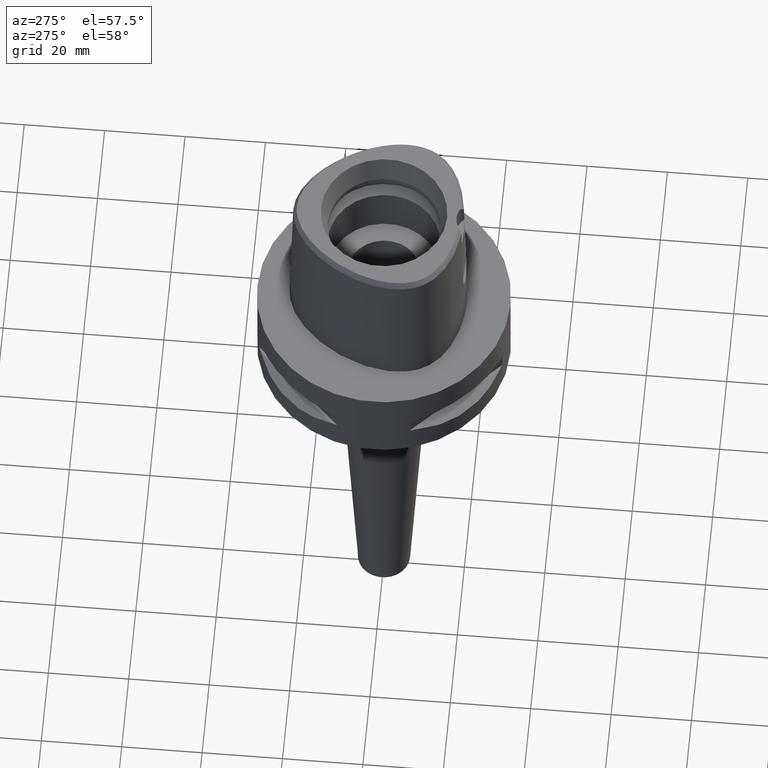
[diagram: clean part render]
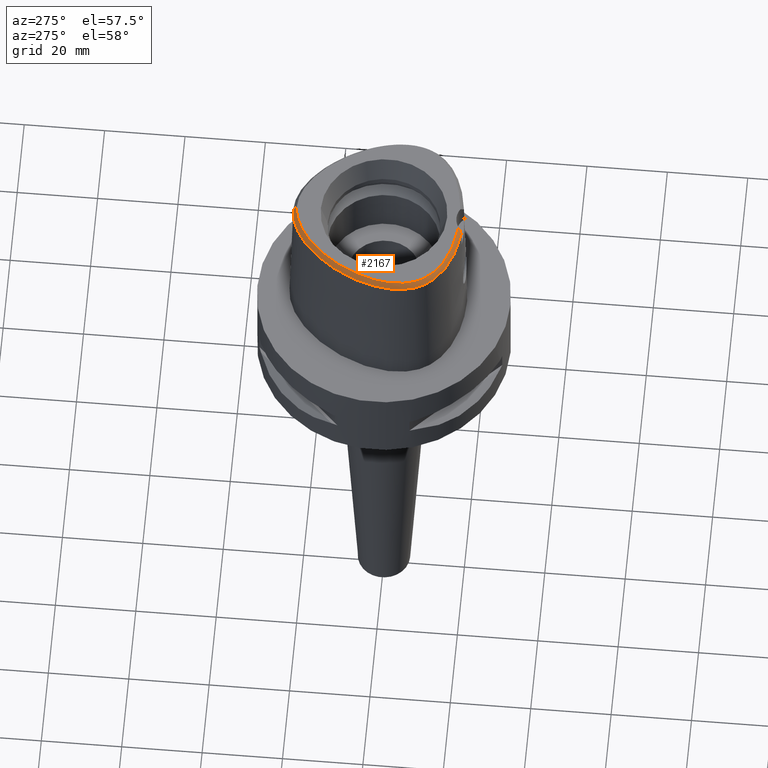
[diagram: same view with one face highlighted and labeled with its STEP entity id]
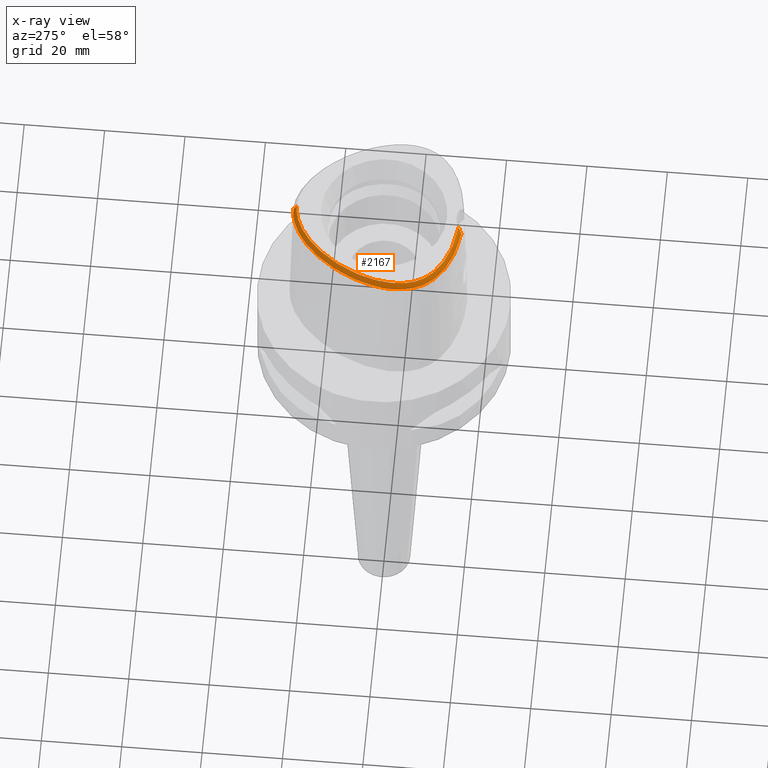
[diagram: x-ray of the same camera — body ghosted, the highlighted face saturated]
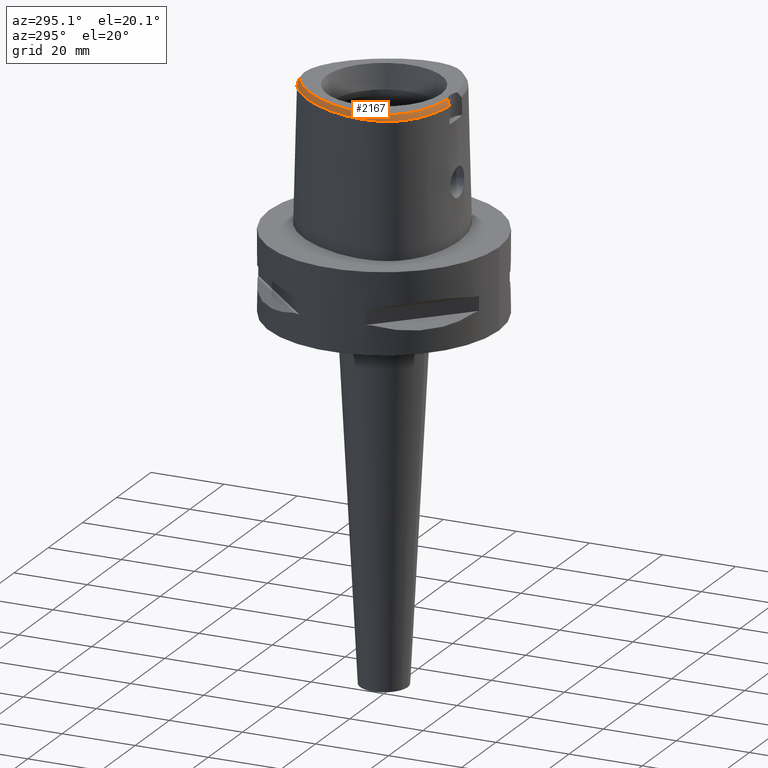
[diagram: same view with one face highlighted and labeled with its STEP entity id]
A machine part, auxiliary view. The second image highlights one B-rep face of the part: STEP entity #2167.
The next image is the same camera in x-ray: the body ghosted, the highlighted face saturated — about 0% of this face is hidden behind the body in this view.
A second angle (auxiliary view) of the same face is appended — the face is thin or edge-on in the first view.
In plain terms, the highlighted face is a freeform B-spline surface patch.
Its self-contained STEP definition (entity closure, byte-faithful):
#34=CARTESIAN_POINT('',(-2.682279906005E0,-1.878035848610E1,3.8E1));
#35=CARTESIAN_POINT('',(-3.586228584062E0,-1.870801032784E1,3.8E1));
#36=CARTESIAN_POINT('',(-5.308205291719E0,-1.849730836982E1,3.8E1));
#37=CARTESIAN_POINT('',(-7.692709063749E0,-1.800633864786E1,3.8E1));
#38=CARTESIAN_POINT('',(-9.712981903672E0,-1.741853963226E1,3.8E1));
#39=CARTESIAN_POINT('',(-1.147525672069E1,-1.675738778527E1,3.8E1));
#40=CARTESIAN_POINT('',(-1.306392596099E1,-1.601239927795E1,3.8E1));
#41=CARTESIAN_POINT('',(-1.449905288696E1,-1.518252759700E1,3.8E1));
#42=CARTESIAN_POINT('',(-1.576050267704E1,-1.428524329159E1,3.8E1));
#43=CARTESIAN_POINT('',(-1.681104160528E1,-1.336911615889E1,3.8E1));
#44=CARTESIAN_POINT('',(-1.768125124672E1,-1.244006173382E1,3.8E1));
#45=CARTESIAN_POINT('',(-1.839385644939E1,-1.150034381849E1,3.8E1));
#46=CARTESIAN_POINT('',(-1.897399263884E1,-1.053874622235E1,3.8E1));
#47=CARTESIAN_POINT('',(-1.946010380121E1,-9.494598084362E0,3.8E1));
#48=CARTESIAN_POINT('',(-1.986244720966E1,-8.325388119061E0,3.8E1));
#49=CARTESIAN_POINT('',(-2.016823293588E1,-7.015151607123E0,3.8E1));
#50=CARTESIAN_POINT('',(-2.036164792737E1,-5.534767052075E0,3.8E1));
#51=CARTESIAN_POINT('',(-2.041577404863E1,-3.903596769674E0,3.8E1));
#52=CARTESIAN_POINT('',(-2.032076525533E1,-2.195753978114E0,3.8E1));
#53=CARTESIAN_POINT('',(-2.007105693777E1,-3.804572632914E-1,3.8E1));
#54=CARTESIAN_POINT('',(-1.964535756017E1,1.582714370326E0,3.8E1));
#55=CARTESIAN_POINT('',(-1.897962183322E1,3.805018530937E0,3.8E1));
#56=CARTESIAN_POINT('',(-1.803159290117E1,6.223282390160E0,3.8E1));
#57=CARTESIAN_POINT('',(-1.684793801476E1,8.639177031310E0,3.8E1));
#58=CARTESIAN_POINT('',(-1.546279333050E1,1.097129757902E1,3.8E1));
#59=CARTESIAN_POINT('',(-1.392323681969E1,1.314528534779E1,3.8E1));
#60=CARTESIAN_POINT('',(-1.228370738747E1,1.509661597866E1,3.8E1));
#61=CARTESIAN_POINT('',(-1.071326479375E1,1.668049699608E1,3.8E1));
#62=CARTESIAN_POINT('',(-9.247586420916E0,1.794799681307E1,3.8E1));
#63=CARTESIAN_POINT('',(-7.805395981351E0,1.901144500772E1,3.8E1));
#64=CARTESIAN_POINT('',(-6.370413206387E0,1.989480475333E1,3.8E1));
#65=CARTESIAN_POINT('',(-4.952404261646E0,2.059889163185E1,3.8E1));
#66=CARTESIAN_POINT('',(-3.600044316983E0,2.111310554259E1,3.8E1));
#67=CARTESIAN_POINT('',(-2.334074181748E0,2.145347675428E1,3.8E1));
#68=CARTESIAN_POINT('',(-1.142370311409E0,2.164594999977E1,3.8E1));
#69=CARTESIAN_POINT('',(-3.750273285144E-1,2.168728795389E1,3.8E1));
#70=CARTESIAN_POINT('',(-3.470663397193E-11,2.168728795390E1,3.8E1));
#183=CARTESIAN_POINT('',(-2.682279906005E0,-1.878035848610E1,3.8E1));
#184=CARTESIAN_POINT('',(-2.795742538136E0,-1.885248275003E1,3.786321482785E1));
#185=CARTESIAN_POINT('',(-3.018597867386E0,-1.900702848679E1,3.757106831959E1));
#186=CARTESIAN_POINT('',(-3.337297352691E0,-1.926897987081E1,3.707984578851E1));
#187=CARTESIAN_POINT('',(-3.539765304928E0,-1.946581615754E1,3.671398622241E1));
#188=CARTESIAN_POINT('',(-3.637738201364E0,-1.956971413237E1,3.652186244848E1));
#193=CARTESIAN_POINT('',(-3.637738201364E0,-1.956971413237E1,3.652186244848E1));
#194=CARTESIAN_POINT('',(-4.537193548749E0,-1.947388025628E1,3.652183529940E1));
#195=CARTESIAN_POINT('',(-6.263949327300E0,-1.921705533810E1,3.652188275785E1));
#196=CARTESIAN_POINT('',(-8.618348519195E0,-1.866798246127E1,3.652185435558E1));
#197=CARTESIAN_POINT('',(-1.060495987192E1,-1.803591213796E1,3.652187576284E1));
#198=CARTESIAN_POINT('',(-1.237067197268E1,-1.732224180535E1,3.652186578478E1));
#199=CARTESIAN_POINT('',(-1.397879260867E1,-1.651413441729E1,3.652186958408E1));
#200=CARTESIAN_POINT('',(-1.542598734321E1,-1.561794019751E1,3.652186521884E1));
#201=CARTESIAN_POINT('',(-1.666737764108E1,-1.467523813454E1,3.652187203924E1));
#202=CARTESIAN_POINT('',(-1.770437627941E1,-1.371528573410E1,3.652187045980E1));
#203=CARTESIAN_POINT('',(-1.857115067472E1,-1.273500788223E1,3.652185855755E1));
#204=CARTESIAN_POINT('',(-1.928442601399E1,-1.174002544139E1,3.652191157147E1));
#205=CARTESIAN_POINT('',(-1.987313581598E1,-1.070549049556E1,3.652186026166E1));
#206=CARTESIAN_POINT('',(-2.036758263126E1,-9.577945777402E0,3.652186701632E1));
#207=CARTESIAN_POINT('',(-2.077211132407E1,-8.321210405634E0,3.652186884943E1));
#208=CARTESIAN_POINT('',(-2.107213951127E1,-6.924739094355E0,3.652186972068E1));
#209=CARTESIAN_POINT('',(-2.125235437077E1,-5.361729912021E0,3.652186572500E1));
#210=CARTESIAN_POINT('',(-2.128712501331E1,-3.639679101091E0,3.652187070383E1));
#211=CARTESIAN_POINT('',(-2.116359888799E1,-1.830362717074E0,3.652186160276E1));
#212=CARTESIAN_POINT('',(-2.087920510343E1,6.599433238334E-2,3.652187692161E1));
#213=CARTESIAN_POINT('',(-2.040877652441E1,2.125525189010E0,3.652185890485E1));
#214=CARTESIAN_POINT('',(-1.967274178354E1,4.473787407312E0,3.652187262732E1));
#215=CARTESIAN_POINT('',(-1.866988253956E1,6.938059692952E0,3.652184673805E1));
#216=CARTESIAN_POINT('',(-1.743962506899E1,9.380231689227E0,3.652185708733E1));
#217=CARTESIAN_POINT('',(-1.600917705974E1,1.173321275189E1,3.652187236541E1));
#218=CARTESIAN_POINT('',(-1.442910686964E1,1.391946669374E1,3.652185993652E1));
#219=CARTESIAN_POINT('',(-1.275797945687E1,1.587321322918E1,3.652186706717E1));
#220=CARTESIAN_POINT('',(-1.114966267944E1,1.746960453198E1,3.652186916644E1));
#221=CARTESIAN_POINT('',(-9.635940589058E0,1.875774927202E1,3.652186756368E1));
#222=CARTESIAN_POINT('',(-8.129315151765E0,1.984871666943E1,3.652186494854E1));
#223=CARTESIAN_POINT('',(-6.628467072847E0,2.075200188891E1,3.652187174651E1));
#224=CARTESIAN_POINT('',(-5.160069573094E0,2.146250909323E1,3.652187196217E1));
#225=CARTESIAN_POINT('',(-3.761043276653E0,2.198030969111E1,3.652186330563E1));
#226=CARTESIAN_POINT('',(-2.442989062411E0,2.232534208061E1,3.652187666147E1));
#227=CARTESIAN_POINT('',(-1.187263974777E0,2.252095610630E1,3.652179140267E1));
#228=CARTESIAN_POINT('',(-3.966403976592E-1,2.256201468012E1,3.652186680743E1));
#229=CARTESIAN_POINT('',(-1.721538145818E-11,2.256201468012E1,
3.652186680744E1));
#234=DIRECTION('',(-1.018375850969E-11,-5.092834681090E-1,8.605988316927E-1));
#235=VECTOR('',#234,1.717563559379E0);
#236=CARTESIAN_POINT('',(-1.721538145818E-11,2.256201468012E1,
3.652186680744E1));
#237=LINE('',#236,#235);
#241=CARTESIAN_POINT('',(-3.637738201364E0,-1.956971413237E1,3.652186244848E1));
#1447=CARTESIAN_POINT('',(-2.682279906007E0,-1.878035848610E1,3.8E1));
#1449=VERTEX_POINT('',#1447);
#1452=VERTEX_POINT('',#70);
#1463=VERTEX_POINT('',#241);
#1464=CARTESIAN_POINT('',(-1.721538145818E-11,2.256201468012E1,
3.652186680744E1));
#1465=VERTEX_POINT('',#1464);
#1911=CARTESIAN_POINT('',(5.884108454669E-1,2.156025804998E1,3.818809545868E1));
#1912=CARTESIAN_POINT('',(6.086991077092E-1,2.192546892924E1,3.756997327730E1));
#1913=CARTESIAN_POINT('',(6.289873699514E-1,2.229067980849E1,3.695185109592E1));
#1914=CARTESIAN_POINT('',(6.492756321937E-1,2.265589068774E1,3.633372891454E1));
#1915=CARTESIAN_POINT('',(3.872006514676E-1,2.157065722628E1,3.818809540356E1));
#1916=CARTESIAN_POINT('',(4.007919193617E-1,2.193625641209E1,3.756997340331E1));
#1917=CARTESIAN_POINT('',(4.143831872557E-1,2.230185559789E1,3.695185140307E1));
#1918=CARTESIAN_POINT('',(4.279744551498E-1,2.266745478369E1,3.633372940283E1));
#1919=CARTESIAN_POINT('',(-2.531722223234E-2,2.158193830770E1,
3.818809536555E1));
#1920=CARTESIAN_POINT('',(-2.611304833073E-2,2.194794412626E1,
3.756997349020E1));
#1921=CARTESIAN_POINT('',(-2.690887442911E-2,2.231394994482E1,
3.695185161486E1));
#1922=CARTESIAN_POINT('',(-2.770470052750E-2,2.267995576337E1,
3.633372973951E1));
#1923=CARTESIAN_POINT('',(-6.429200300095E-1,2.156261856873E1,
3.818809543064E1));
#1924=CARTESIAN_POINT('',(-6.658544550097E-1,2.192792799672E1,
3.756997334139E1));
#1925=CARTESIAN_POINT('',(-6.887888800099E-1,2.229323742471E1,
3.695185125215E1));
#1926=CARTESIAN_POINT('',(-7.117233050101E-1,2.265854685271E1,
3.633372916291E1));
#1927=CARTESIAN_POINT('',(-1.309828249484E0,2.150047141002E1,3.818809547050E1));
#1928=CARTESIAN_POINT('',(-1.355330144038E0,2.186365434379E1,3.756997325028E1));
#1929=CARTESIAN_POINT('',(-1.400832038593E0,2.222683727756E1,3.695185103007E1));
#1930=CARTESIAN_POINT('',(-1.446333933147E0,2.259002021134E1,3.633372880986E1));
#1931=CARTESIAN_POINT('',(-1.996438970932E0,2.139334789722E1,3.818809540467E1));
#1932=CARTESIAN_POINT('',(-2.064089679359E0,2.175305833101E1,3.756997340076E1));
#1933=CARTESIAN_POINT('',(-2.131740387785E0,2.211276876480E1,3.695185139686E1));
#1934=CARTESIAN_POINT('',(-2.199391096211E0,2.247247919859E1,3.633372939295E1));
#1935=CARTESIAN_POINT('',(-2.708548297128E0,2.123757357004E1,3.818809533555E1));
#1936=CARTESIAN_POINT('',(-2.797768876149E0,2.159254220057E1,3.756997355881E1));
#1937=CARTESIAN_POINT('',(-2.886989455171E0,2.194751083110E1,3.695185178208E1));
#1938=CARTESIAN_POINT('',(-2.976210034193E0,2.230247946163E1,3.633373000535E1));
#1939=CARTESIAN_POINT('',(-3.447501903538E0,2.102888486199E1,3.818809535046E1));
#1940=CARTESIAN_POINT('',(-3.557640396634E0,2.137792268828E1,3.756997352471E1));
#1941=CARTESIAN_POINT('',(-3.667778889731E0,2.172696051457E1,3.695185169895E1));
#1942=CARTESIAN_POINT('',(-3.777917382828E0,2.207599834086E1,3.633372987320E1));
#1943=CARTESIAN_POINT('',(-4.214903867223E0,2.076252776782E1,3.818809540601E1));
#1944=CARTESIAN_POINT('',(-4.345219649226E0,2.110453691295E1,3.756997339771E1));
#1945=CARTESIAN_POINT('',(-4.475535431228E0,2.144654605808E1,3.695185138941E1));
#1946=CARTESIAN_POINT('',(-4.605851213231E0,2.178855520322E1,3.633372938111E1));
#1947=CARTESIAN_POINT('',(-5.012668720922E0,2.043282628390E1,3.818809534568E1));
#1948=CARTESIAN_POINT('',(-5.162361549133E0,2.076680041922E1,3.756997353562E1));
#1949=CARTESIAN_POINT('',(-5.312054377345E0,2.110077455455E1,3.695185172556E1));
#1950=CARTESIAN_POINT('',(-5.461747205556E0,2.143474868987E1,3.633372991550E1));
#1951=CARTESIAN_POINT('',(-5.842361250785E0,2.003344382922E1,3.818809532962E1));
#1952=CARTESIAN_POINT('',(-6.010557148468E0,2.035848392826E1,3.756997357237E1));
#1953=CARTESIAN_POINT('',(-6.178753046151E0,2.068352402730E1,3.695185181513E1));
#1954=CARTESIAN_POINT('',(-6.346948943834E0,2.100856412633E1,3.633373005789E1));
#1955=CARTESIAN_POINT('',(-6.702888122816E0,1.955860582634E1,3.818809540239E1));
#1956=CARTESIAN_POINT('',(-6.888709304838E0,1.987389288021E1,3.756997340597E1));
#1957=CARTESIAN_POINT('',(-7.074530486860E0,2.018917993408E1,3.695185140956E1));
#1958=CARTESIAN_POINT('',(-7.260351668881E0,2.050446698795E1,3.633372941314E1));
#1959=CARTESIAN_POINT('',(-7.593592918578E0,1.900176819251E1,3.818809539813E1));
#1960=CARTESIAN_POINT('',(-7.796122208178E0,1.930658240990E1,3.756997341572E1));
#1961=CARTESIAN_POINT('',(-7.998651497779E0,1.961139662730E1,3.695185143331E1));
#1962=CARTESIAN_POINT('',(-8.201180787379E0,1.991621084470E1,3.633372945091E1));
#1963=CARTESIAN_POINT('',(-8.511784475304E0,1.835719399190E1,3.818809546362E1));
#1964=CARTESIAN_POINT('',(-8.730107657638E0,1.865089449007E1,3.756997326601E1));
#1965=CARTESIAN_POINT('',(-8.948430839971E0,1.894459498825E1,3.695185106839E1));
#1966=CARTESIAN_POINT('',(-9.166754022305E0,1.923829548643E1,3.633372887078E1));
#1967=CARTESIAN_POINT('',(-9.453365664655E0,1.761977148632E1,3.818809522651E1));
#1968=CARTESIAN_POINT('',(-9.686593669022E0,1.790177292906E1,3.756997380809E1));
#1969=CARTESIAN_POINT('',(-9.919821673389E0,1.818377437179E1,3.695185238967E1));
#1970=CARTESIAN_POINT('',(-1.015304967776E1,1.846577581453E1,3.633373097124E1));
#1971=CARTESIAN_POINT('',(-1.041439657518E1,1.678421315798E1,3.818809494157E1));
#1972=CARTESIAN_POINT('',(-1.066161084041E1,1.705402910004E1,3.756997445954E1));
#1973=CARTESIAN_POINT('',(-1.090882510563E1,1.732384504210E1,3.695185397752E1));
#1974=CARTESIAN_POINT('',(-1.115603937086E1,1.759366098416E1,3.633373349550E1));
#1975=CARTESIAN_POINT('',(-1.138642050653E1,1.584915603370E1,3.818809496419E1));
#1976=CARTESIAN_POINT('',(-1.164675691222E1,1.610632660804E1,3.756997440780E1));
#1977=CARTESIAN_POINT('',(-1.190709331791E1,1.636349718237E1,3.695185385140E1));
#1978=CARTESIAN_POINT('',(-1.216742972360E1,1.662066775670E1,3.633373329501E1));
#1979=CARTESIAN_POINT('',(-1.235821132425E1,1.481700291251E1,3.818809530240E1));
#1980=CARTESIAN_POINT('',(-1.263082802107E1,1.506111140578E1,3.756997363457E1));
#1981=CARTESIAN_POINT('',(-1.290344471788E1,1.530521989905E1,3.695185196674E1));
#1982=CARTESIAN_POINT('',(-1.317606141470E1,1.554932839232E1,3.633373029891E1));
#1983=CARTESIAN_POINT('',(-1.331790119200E1,1.369250456254E1,3.818809546180E1));
#1984=CARTESIAN_POINT('',(-1.360201164600E1,1.392312874762E1,3.756997327015E1));
#1985=CARTESIAN_POINT('',(-1.38861221E1,1.415375293270E1,3.695185107851E1));
#1986=CARTESIAN_POINT('',(-1.417023255400E1,1.438437711779E1,3.633372888686E1));
#1987=CARTESIAN_POINT('',(-1.425431396291E1,1.248165331148E1,3.818809532004E1));
#1988=CARTESIAN_POINT('',(-1.454912006732E1,1.269843308609E1,3.756997359426E1));
#1989=CARTESIAN_POINT('',(-1.484392617173E1,1.291521286070E1,3.695185186848E1));
#1990=CARTESIAN_POINT('',(-1.513873227615E1,1.313199263531E1,3.633373014270E1));
#1991=CARTESIAN_POINT('',(-1.515418677671E1,1.119553769107E1,3.818809528750E1));
#1992=CARTESIAN_POINT('',(-1.545894380362E1,1.139808652641E1,3.756997366866E1));
#1993=CARTESIAN_POINT('',(-1.576370083052E1,1.160063536176E1,3.695185204983E1));
#1994=CARTESIAN_POINT('',(-1.606845785743E1,1.180318419710E1,3.633373043099E1));
#1995=CARTESIAN_POINT('',(-1.600251446758E1,9.851554792148E0,3.818809540076E1));
#1996=CARTESIAN_POINT('',(-1.631649622609E1,1.003948595927E1,3.756997340973E1));
#1997=CARTESIAN_POINT('',(-1.663047798460E1,1.022741712640E1,3.695185141870E1));
#1998=CARTESIAN_POINT('',(-1.694445974310E1,1.041534829353E1,3.633372942767E1));
#1999=CARTESIAN_POINT('',(-1.678833680475E1,8.465215278404E0,3.818809535839E1));
#2000=CARTESIAN_POINT('',(-1.711085333688E1,8.638090461100E0,3.756997350658E1));
#2001=CARTESIAN_POINT('',(-1.743336986901E1,8.810965643796E0,3.695185165478E1));
#2002=CARTESIAN_POINT('',(-1.775588640113E1,8.983840826492E0,3.633372980297E1));
#2003=CARTESIAN_POINT('',(-1.750375043668E1,7.050865642118E0,3.818809528417E1));
#2004=CARTESIAN_POINT('',(-1.783407776008E1,7.208304581675E0,3.756997367626E1));
#2005=CARTESIAN_POINT('',(-1.816440508349E1,7.365743521231E0,3.695185206835E1));
#2006=CARTESIAN_POINT('',(-1.849473240689E1,7.523182460788E0,3.633373046043E1));
#2007=CARTESIAN_POINT('',(-1.814034382997E1,5.628156859909E0,3.818809536471E1));
#2008=CARTESIAN_POINT('',(-1.847778512033E1,5.769712928842E0,3.756997349211E1));
#2009=CARTESIAN_POINT('',(-1.881522641070E1,5.911268997775E0,3.695185161951E1));
#2010=CARTESIAN_POINT('',(-1.915266770106E1,6.052825066709E0,3.633372974691E1));
#2011=CARTESIAN_POINT('',(-1.869186594256E1,4.218155226442E0,3.818809547371E1));
#2012=CARTESIAN_POINT('',(-1.903571213312E1,4.343362355664E0,3.756997324292E1));
#2013=CARTESIAN_POINT('',(-1.937955832369E1,4.468569484886E0,3.695185101212E1));
#2014=CARTESIAN_POINT('',(-1.972340451425E1,4.593776614108E0,3.633372878133E1));
#2015=CARTESIAN_POINT('',(-1.915688339696E1,2.835598520490E0,3.818809516369E1));
#2016=CARTESIAN_POINT('',(-1.950641032252E1,2.943952831703E0,3.756997395171E1));
#2017=CARTESIAN_POINT('',(-1.985593724808E1,3.052307142916E0,3.695185273973E1));
#2018=CARTESIAN_POINT('',(-2.020546417364E1,3.160661454129E0,3.633373152775E1));
#2019=CARTESIAN_POINT('',(-1.953648348344E1,1.492556670568E0,3.818809491228E1));
#2020=CARTESIAN_POINT('',(-1.989092501984E1,1.583574047017E0,3.756997452647E1));
#2021=CARTESIAN_POINT('',(-2.024536655625E1,1.674591423465E0,3.695185414066E1));
#2022=CARTESIAN_POINT('',(-2.059980809266E1,1.765608799913E0,3.633373375485E1));
#2023=CARTESIAN_POINT('',(-1.983277936867E1,2.019929991361E-1,
3.818809499921E1));
#2024=CARTESIAN_POINT('',(-2.019133914686E1,2.751490748304E-1,
3.756997432774E1));
#2025=CARTESIAN_POINT('',(-2.054989892505E1,3.483051505247E-1,
3.695185365627E1));
#2026=CARTESIAN_POINT('',(-2.090845870324E1,4.214612262190E-1,
3.633373298480E1));
#2027=CARTESIAN_POINT('',(-2.005002402360E1,-1.026365860494E0,
3.818809534401E1));
#2028=CARTESIAN_POINT('',(-2.041185493075E1,-9.715922552053E-1,
3.756997353946E1));
#2029=CARTESIAN_POINT('',(-2.077368583791E1,-9.168186499162E-1,
3.695185173491E1));
#2030=CARTESIAN_POINT('',(-2.113551674506E1,-8.620450446272E-1,
3.633372993036E1));
#2031=CARTESIAN_POINT('',(-2.019415746911E1,-2.188285486743E0,
3.818809545363E1));
#2032=CARTESIAN_POINT('',(-2.055835797492E1,-2.152444081803E0,
3.756997328886E1));
#2033=CARTESIAN_POINT('',(-2.092255848073E1,-2.116602676862E0,
3.695185112410E1));
#2034=CARTESIAN_POINT('',(-2.128675898654E1,-2.080761271922E0,
3.633372895934E1));
#2035=CARTESIAN_POINT('',(-2.027176354906E1,-3.283351112206E0,
3.818809540687E1));
#2036=CARTESIAN_POINT('',(-2.063736034742E1,-3.266899467493E0,
3.756997339574E1));
#2037=CARTESIAN_POINT('',(-2.100295714578E1,-3.250447822779E0,
3.695185138462E1));
#2038=CARTESIAN_POINT('',(-2.136855394414E1,-3.233996178066E0,
3.633372937349E1));
#2039=CARTESIAN_POINT('',(-2.028924055096E1,-4.310378228618E0,
3.818809538358E1));
#2040=CARTESIAN_POINT('',(-2.065519911463E1,-4.313793844480E0,
3.756997344901E1));
#2041=CARTESIAN_POINT('',(-2.102115767830E1,-4.317209460341E0,
3.695185151444E1));
#2042=CARTESIAN_POINT('',(-2.138711624196E1,-4.320625076202E0,
3.633372957987E1));
#2043=CARTESIAN_POINT('',(-2.025285096765E1,-5.271266202719E0,
3.818809528829E1));
#2044=CARTESIAN_POINT('',(-2.061806621529E1,-5.294941821197E0,
3.756997366684E1));
#2045=CARTESIAN_POINT('',(-2.098328146293E1,-5.318617439675E0,
3.695185204538E1));
#2046=CARTESIAN_POINT('',(-2.134849671058E1,-5.342293058154E0,
3.633373042393E1));
#2047=CARTESIAN_POINT('',(-2.016843245903E1,-6.168448963023E0,
3.818809535007E1));
#2048=CARTESIAN_POINT('',(-2.053173459418E1,-6.212722903922E0,
3.756997352558E1));
#2049=CARTESIAN_POINT('',(-2.089503672933E1,-6.256996844822E0,
3.695185170110E1));
#2050=CARTESIAN_POINT('',(-2.125833886447E1,-6.301270785722E0,
3.633372987661E1));
#2051=CARTESIAN_POINT('',(-2.004130608537E1,-7.004402142898E0,
3.818809542411E1));
#2052=CARTESIAN_POINT('',(-2.040145842252E1,-7.069553027728E0,
3.756997335634E1));
#2053=CARTESIAN_POINT('',(-2.076161075968E1,-7.134703912559E0,
3.695185128857E1));
#2054=CARTESIAN_POINT('',(-2.112176309683E1,-7.199854797389E0,
3.633372922080E1));
#2055=CARTESIAN_POINT('',(-1.987595077402E1,-7.783673202117E0,
3.818809541776E1));
#2056=CARTESIAN_POINT('',(-2.023166430383E1,-7.869856476315E0,
3.756997337086E1));
#2057=CARTESIAN_POINT('',(-2.058737783363E1,-7.956039750513E0,
3.695185132396E1));
#2058=CARTESIAN_POINT('',(-2.094309136343E1,-8.042223024711E0,
3.633372927706E1));
#2059=CARTESIAN_POINT('',(-1.967613493733E1,-8.510504326049E0,
3.818809540586E1));
#2060=CARTESIAN_POINT('',(-2.002607471224E1,-8.617775157398E0,
3.756997339807E1));
#2061=CARTESIAN_POINT('',(-2.037601448715E1,-8.725045988747E0,
3.695185139028E1));
#2062=CARTESIAN_POINT('',(-2.072595426206E1,-8.832316820096E0,
3.633372938249E1));
#2063=CARTESIAN_POINT('',(-1.944488586747E1,-9.189128200686E0,
3.818809535005E1));
#2064=CARTESIAN_POINT('',(-1.978768202765E1,-9.317427272189E0,
3.756997352567E1));
#2065=CARTESIAN_POINT('',(-2.013047818784E1,-9.445726343692E0,
3.695185170128E1));
#2066=CARTESIAN_POINT('',(-2.047327434803E1,-9.574025415195E0,
3.633372987690E1));
#2067=CARTESIAN_POINT('',(-1.918419840706E1,-9.824304940859E0,
3.818809538151E1));
#2068=CARTESIAN_POINT('',(-1.951846783861E1,-9.973425210329E0,
3.756997345370E1));
#2069=CARTESIAN_POINT('',(-1.985273727016E1,-1.012254547980E1,
3.695185152589E1));
#2070=CARTESIAN_POINT('',(-2.018700670171E1,-1.027166574927E1,
3.633372959808E1));
#2071=CARTESIAN_POINT('',(-1.889650148335E1,-1.041807643556E1,
3.818809543608E1));
#2072=CARTESIAN_POINT('',(-1.922087498804E1,-1.058766816268E1,
3.756997332898E1));
#2073=CARTESIAN_POINT('',(-1.954524849273E1,-1.075725988980E1,
3.695185122188E1));
#2074=CARTESIAN_POINT('',(-1.986962199742E1,-1.092685161691E1,
3.633372911478E1));
#2075=CARTESIAN_POINT('',(-1.858084130983E1,-1.097786365797E1,
3.818809538041E1));
#2076=CARTESIAN_POINT('',(-1.889383730834E1,-1.116763722060E1,
3.756997345623E1));
#2077=CARTESIAN_POINT('',(-1.920683330685E1,-1.135741078322E1,
3.695185153205E1));
#2078=CARTESIAN_POINT('',(-1.951982930536E1,-1.154718434584E1,
3.633372960786E1));
#2079=CARTESIAN_POINT('',(-1.822602496650E1,-1.152434499763E1,
3.818809543598E1));
#2080=CARTESIAN_POINT('',(-1.852657292323E1,-1.173325938869E1,
3.756997332918E1));
#2081=CARTESIAN_POINT('',(-1.882712087996E1,-1.194217377974E1,
3.695185122238E1));
#2082=CARTESIAN_POINT('',(-1.912766883668E1,-1.215108817080E1,
3.633372911557E1));
#2083=CARTESIAN_POINT('',(-1.782269208541E1,-1.206869196566E1,
3.818809533295E1));
#2084=CARTESIAN_POINT('',(-1.810978583769E1,-1.229573432161E1,
3.756997356475E1));
#2085=CARTESIAN_POINT('',(-1.839687958998E1,-1.252277667756E1,
3.695185179655E1));
#2086=CARTESIAN_POINT('',(-1.868397334227E1,-1.274981903351E1,
3.633373002835E1));
#2087=CARTESIAN_POINT('',(-1.736820639E1,-1.260937354073E1,3.818809539644E1));
#2088=CARTESIAN_POINT('',(-1.764093158607E1,-1.285347898943E1,
3.756997341961E1));
#2089=CARTESIAN_POINT('',(-1.791365678215E1,-1.309758443812E1,
3.695185144278E1));
#2090=CARTESIAN_POINT('',(-1.818638197823E1,-1.334168988681E1,
3.633372946595E1));
#2091=CARTESIAN_POINT('',(-1.685800027940E1,-1.314680493715E1,
3.818809541333E1));
#2092=CARTESIAN_POINT('',(-1.711557698601E1,-1.340683502064E1,
3.756997338096E1));
#2093=CARTESIAN_POINT('',(-1.737315369262E1,-1.366686510414E1,
3.695185134859E1));
#2094=CARTESIAN_POINT('',(-1.763073039923E1,-1.392689518763E1,
3.633372931622E1));
#2095=CARTESIAN_POINT('',(-1.628675285440E1,-1.368096977122E1,
3.818809542512E1));
#2096=CARTESIAN_POINT('',(-1.652852338799E1,-1.395574808713E1,
3.756997335403E1));
#2097=CARTESIAN_POINT('',(-1.677029392157E1,-1.423052640304E1,
3.695185128294E1));
#2098=CARTESIAN_POINT('',(-1.701206445516E1,-1.450530471894E1,
3.633372921186E1));
#2099=CARTESIAN_POINT('',(-1.564929400623E1,-1.421069026522E1,
3.818809538654E1));
#2100=CARTESIAN_POINT('',(-1.587471234323E1,-1.449902526513E1,
3.756997344220E1));
#2101=CARTESIAN_POINT('',(-1.610013068023E1,-1.478736026504E1,
3.695185149785E1));
#2102=CARTESIAN_POINT('',(-1.632554901723E1,-1.507569526495E1,
3.633372955350E1));
#2103=CARTESIAN_POINT('',(-1.493946363077E1,-1.473468177732E1,
3.818809529152E1));
#2104=CARTESIAN_POINT('',(-1.514811299094E1,-1.503536434849E1,
3.756997365946E1));
#2105=CARTESIAN_POINT('',(-1.535676235110E1,-1.533604691967E1,
3.695185202739E1));
#2106=CARTESIAN_POINT('',(-1.556541171127E1,-1.563672949085E1,
3.633373039533E1));
#2107=CARTESIAN_POINT('',(-1.415172329573E1,-1.525029822802E1,
3.818809534619E1));
#2108=CARTESIAN_POINT('',(-1.434328570049E1,-1.556213631363E1,
3.756997353445E1));
#2109=CARTESIAN_POINT('',(-1.453484810526E1,-1.587397439924E1,
3.695185172272E1));
#2110=CARTESIAN_POINT('',(-1.472641051002E1,-1.618581248486E1,
3.633372991098E1));
#2111=CARTESIAN_POINT('',(-1.328155992420E1,-1.575354898288E1,
3.818809541043E1));
#2112=CARTESIAN_POINT('',(-1.345578814560E1,-1.607538445343E1,
3.756997338762E1));
#2113=CARTESIAN_POINT('',(-1.363001636700E1,-1.639721992397E1,
3.695185136480E1));
#2114=CARTESIAN_POINT('',(-1.380424458839E1,-1.671905539452E1,
3.633372934199E1));
#2115=CARTESIAN_POINT('',(-1.232362173872E1,-1.624041539756E1,
3.818809542420E1));
#2116=CARTESIAN_POINT('',(-1.248038995547E1,-1.657109933818E1,
3.756997335612E1));
#2117=CARTESIAN_POINT('',(-1.263715817222E1,-1.690178327880E1,
3.695185128804E1));
#2118=CARTESIAN_POINT('',(-1.279392638897E1,-1.723246721942E1,
3.633372921996E1));
#2119=CARTESIAN_POINT('',(-1.127554565821E1,-1.670498138318E1,
3.818809543222E1));
#2120=CARTESIAN_POINT('',(-1.141476016712E1,-1.704342279541E1,
3.756997333778E1));
#2121=CARTESIAN_POINT('',(-1.155397467604E1,-1.738186420764E1,
3.695185124334E1));
#2122=CARTESIAN_POINT('',(-1.169318918495E1,-1.772030561988E1,
3.633372914889E1));
#2123=CARTESIAN_POINT('',(-1.013434292203E1,-1.714141663188E1,
3.818809510453E1));
#2124=CARTESIAN_POINT('',(-1.025599143847E1,-1.748655436465E1,
3.756997408697E1));
#2125=CARTESIAN_POINT('',(-1.037763995492E1,-1.783169209743E1,
3.695185306942E1));
#2126=CARTESIAN_POINT('',(-1.049928847136E1,-1.817682983020E1,
3.633373205187E1));
#2127=CARTESIAN_POINT('',(-8.898415328126E0,-1.754324763849E1,
3.818809492141E1));
#2128=CARTESIAN_POINT('',(-9.002524921801E0,-1.789406870950E1,
3.756997450561E1));
#2129=CARTESIAN_POINT('',(-9.106634515477E0,-1.824488978050E1,
3.695185408981E1));
#2130=CARTESIAN_POINT('',(-9.210744109152E0,-1.859571085151E1,
3.633373367401E1));
#2131=CARTESIAN_POINT('',(-7.573012935208E0,-1.790191583334E1,
3.818809506138E1));
#2132=CARTESIAN_POINT('',(-7.659629598388E0,-1.825745513746E1,
3.756997418563E1));
#2133=CARTESIAN_POINT('',(-7.746246261568E0,-1.861299444158E1,
3.695185330988E1));
#2134=CARTESIAN_POINT('',(-7.832862924748E0,-1.896853374570E1,
3.633373243414E1));
#2135=CARTESIAN_POINT('',(-6.167325316400E0,-1.820895995326E1,
3.818809542331E1));
#2136=CARTESIAN_POINT('',(-6.236503041033E0,-1.856829586560E1,
3.756997335814E1));
#2137=CARTESIAN_POINT('',(-6.305680765666E0,-1.892763177794E1,
3.695185129297E1));
#2138=CARTESIAN_POINT('',(-6.374858490299E0,-1.928696769028E1,
3.633372922780E1));
#2139=CARTESIAN_POINT('',(-4.691236730139E0,-1.845698578558E1,
3.818809539929E1));
#2140=CARTESIAN_POINT('',(-4.743019908900E0,-1.881923430703E1,
3.756997341310E1));
#2141=CARTESIAN_POINT('',(-4.794803087660E0,-1.918148282848E1,
3.695185142691E1));
#2142=CARTESIAN_POINT('',(-4.846586266420E0,-1.954373134993E1,
3.633372944073E1));
#2143=CARTESIAN_POINT('',(-3.511190450672E0,-1.859740211461E1,
3.818809530068E1));
#2144=CARTESIAN_POINT('',(-3.549660165698E0,-1.896122896249E1,
3.756997363851E1));
#2145=CARTESIAN_POINT('',(-3.588129880724E0,-1.932505581037E1,
3.695185197634E1));
#2146=CARTESIAN_POINT('',(-3.626599595750E0,-1.968888265825E1,
3.633373031416E1));
#2147=CARTESIAN_POINT('',(-2.629896922914E0,-1.867436170037E1,
3.818809528779E1));
#2148=CARTESIAN_POINT('',(-2.658599042264E0,-1.903904142932E1,
3.756997366798E1));
#2149=CARTESIAN_POINT('',(-2.687301161614E0,-1.940372115826E1,
3.695185204818E1));
#2150=CARTESIAN_POINT('',(-2.716003280965E0,-1.976840088721E1,
3.633373042837E1));
#2151=CARTESIAN_POINT('',(-2.266210994372E0,-1.870010573103E1,
3.818809529372E1));
#2152=CARTESIAN_POINT('',(-2.290913594734E0,-1.906506843271E1,
3.756997365442E1));
#2153=CARTESIAN_POINT('',(-2.315616195096E0,-1.943003113439E1,
3.695185201512E1));
#2154=CARTESIAN_POINT('',(-2.340318795459E0,-1.979499383608E1,
3.633373037581E1));
#2155=CARTESIAN_POINT('',(-2.061773675851E0,-1.871268653970E1,
3.818809529986E1));
#2156=CARTESIAN_POINT('',(-2.084235286083E0,-1.907778712370E1,
3.756997364040E1));
#2157=CARTESIAN_POINT('',(-2.106696896316E0,-1.944288770771E1,
3.695185198093E1));
#2158=CARTESIAN_POINT('',(-2.129158506548E0,-1.980798829171E1,
3.633373032146E1));
#2159=B_SPLINE_SURFACE_WITH_KNOTS('',3,3,((#1911,#1912,#1913,#1914),(#1915,
#1916,#1917,#1918),(#1919,#1920,#1921,#1922),(#1923,#1924,#1925,#1926),(#1927,
#1928,#1929,#1930),(#1931,#1932,#1933,#1934),(#1935,#1936,#1937,#1938),(#1939,
#1940,#1941,#1942),(#1943,#1944,#1945,#1946),(#1947,#1948,#1949,#1950),(#1951,
#1952,#1953,#1954),(#1955,#1956,#1957,#1958),(#1959,#1960,#1961,#1962),(#1963,
#1964,#1965,#1966),(#1967,#1968,#1969,#1970),(#1971,#1972,#1973,#1974),(#1975,
#1976,#1977,#1978),(#1979,#1980,#1981,#1982),(#1983,#1984,#1985,#1986),(#1987,
#1988,#1989,#1990),(#1991,#1992,#1993,#1994),(#1995,#1996,#1997,#1998),(#1999,
#2000,#2001,#2002),(#2003,#2004,#2005,#2006),(#2007,#2008,#2009,#2010),(#2011,
#2012,#2013,#2014),(#2015,#2016,#2017,#2018),(#2019,#2020,#2021,#2022),(#2023,
#2024,#2025,#2026),(#2027,#2028,#2029,#2030),(#2031,#2032,#2033,#2034),(#2035,
#2036,#2037,#2038),(#2039,#2040,#2041,#2042),(#2043,#2044,#2045,#2046),(#2047,
#2048,#2049,#2050),(#2051,#2052,#2053,#2054),(#2055,#2056,#2057,#2058),(#2059,
#2060,#2061,#2062),(#2063,#2064,#2065,#2066),(#2067,#2068,#2069,#2070),(#2071,
#2072,#2073,#2074),(#2075,#2076,#2077,#2078),(#2079,#2080,#2081,#2082),(#2083,
#2084,#2085,#2086),(#2087,#2088,#2089,#2090),(#2091,#2092,#2093,#2094),(#2095,
#2096,#2097,#2098),(#2099,#2100,#2101,#2102),(#2103,#2104,#2105,#2106),(#2107,
#2108,#2109,#2110),(#2111,#2112,#2113,#2114),(#2115,#2116,#2117,#2118),(#2119,
#2120,#2121,#2122),(#2123,#2124,#2125,#2126),(#2127,#2128,#2129,#2130),(#2131,
#2132,#2133,#2134),(#2135,#2136,#2137,#2138),(#2139,#2140,#2141,#2142),(#2143,
#2144,#2145,#2146),(#2147,#2148,#2149,#2150),(#2151,#2152,#2153,#2154),(#2155,
#2156,#2157,#2158)),.UNSPECIFIED.,.F.,.F.,.F.,(4,1,1,1,1,1,1,1,1,1,1,1,1,1,1,1,
1,1,1,1,1,1,1,1,1,1,1,1,1,1,1,1,1,1,1,1,1,1,1,1,1,1,1,1,1,1,1,1,1,1,1,1,1,1,1,1,
1,1,1,4),(4,4),(-1.585043674195E-2,0.E0,1.776034072166E-2,3.552068144392E-2,
5.328102216617E-2,7.104136288843E-2,8.880170361069E-2,1.065620443330E-1,
1.243223850552E-1,1.420827257775E-1,1.598430664997E-1,1.776034072219E-1,
1.953637479442E-1,2.131240886664E-1,2.308844293888E-1,2.486447701110E-1,
2.664051108333E-1,2.841654515555E-1,3.019257922778E-1,3.19686133E-1,
3.374464737223E-1,3.552068144445E-1,3.729671551668E-1,3.907274958891E-1,
4.084878366113E-1,4.262481773336E-1,4.440085180558E-1,4.617688587781E-1,
4.795291995003E-1,4.972895402226E-1,5.150498809448E-1,5.328102216671E-1,
5.505705623894E-1,5.683309031116E-1,5.860912438339E-1,6.038515845561E-1,
6.216119252784E-1,6.393722660006E-1,6.571326067229E-1,6.748929474452E-1,
6.926532881674E-1,7.104136288897E-1,7.281739696119E-1,7.459343103342E-1,
7.636946510564E-1,7.814549917787E-1,7.992153325009E-1,8.169756732232E-1,
8.347360139455E-1,8.524963546678E-1,8.702566953900E-1,8.880170361122E-1,
9.057773768345E-1,9.235377175567E-1,9.412980582790E-1,9.590583990012E-1,
9.768187397236E-1,9.945790804458E-1,1.E0,1.006922200500E0),(-1.031262839210E-1,
1.103148590541E0),.UNSPECIFIED.);
#2160=ORIENTED_EDGE('',*,*,#1648,.T.);
#2162=ORIENTED_EDGE('',*,*,#2161,.T.);
#2163=ORIENTED_EDGE('',*,*,#1904,.T.);
#2164=ORIENTED_EDGE('',*,*,#1618,.F.);
#2165=EDGE_LOOP('',(#2160,#2162,#2163,#2164));
#2166=FACE_OUTER_BOUND('',#2165,.F.);
#71=B_SPLINE_CURVE_WITH_KNOTS('',3,(#34,#35,#36,#37,#38,#39,#40,#41,#42,#43,#44,
#45,#46,#47,#48,#49,#50,#51,#52,#53,#54,#55,#56,#57,#58,#59,#60,#61,#62,#63,#64,
#65,#66,#67,#68,#69,#70),.UNSPECIFIED.,.F.,.F.,(4,1,1,1,1,1,1,1,1,1,1,1,1,1,1,1,
1,1,1,1,1,1,1,1,1,1,1,1,1,1,1,1,1,1,4),(0.E0,2.941176470588E-2,
5.882352941176E-2,8.823529411765E-2,1.176470588235E-1,1.470588235294E-1,
1.764705882353E-1,2.058823529412E-1,2.352941176471E-1,2.647058823529E-1,
2.941176470588E-1,3.235294117647E-1,3.529411764706E-1,3.823529411765E-1,
4.117647058824E-1,4.411764705882E-1,4.705882352941E-1,5.E-1,5.294117647059E-1,
5.588235294118E-1,5.882352941176E-1,6.176470588235E-1,6.470588235294E-1,
6.764705882353E-1,7.058823529412E-1,7.352941176471E-1,7.647058823529E-1,
7.941176470588E-1,8.235294117647E-1,8.529411764706E-1,8.823529411765E-1,
9.117647058824E-1,9.411764705882E-1,9.705882352941E-1,1.E0),.UNSPECIFIED.);
#189=B_SPLINE_CURVE_WITH_KNOTS('',3,(#183,#184,#185,#186,#187,#188),
.UNSPECIFIED.,.F.,.F.,(4,1,1,4),(0.E0,3.333333333333E-1,6.666666666667E-1,1.E0),
.UNSPECIFIED.);
#230=B_SPLINE_CURVE_WITH_KNOTS('',3,(#193,#194,#195,#196,#197,#198,#199,#200,
#201,#202,#203,#204,#205,#206,#207,#208,#209,#210,#211,#212,#213,#214,#215,#216,
#217,#218,#219,#220,#221,#222,#223,#224,#225,#226,#227,#228,#229),.UNSPECIFIED.,
.F.,.F.,(4,1,1,1,1,1,1,1,1,1,1,1,1,1,1,1,1,1,1,1,1,1,1,1,1,1,1,1,1,1,1,1,1,1,4),
(0.E0,2.941176470588E-2,5.882352941176E-2,8.823529411765E-2,1.176470588235E-1,
1.470588235294E-1,1.764705882353E-1,2.058823529412E-1,2.352941176471E-1,
2.647058823529E-1,2.941176470588E-1,3.235294117647E-1,3.529411764706E-1,
3.823529411765E-1,4.117647058824E-1,4.411764705882E-1,4.705882352941E-1,5.E-1,
5.294117647059E-1,5.588235294118E-1,5.882352941176E-1,6.176470588235E-1,
6.470588235294E-1,6.764705882353E-1,7.058823529412E-1,7.352941176471E-1,
7.647058823529E-1,7.941176470588E-1,8.235294117647E-1,8.529411764706E-1,
8.823529411765E-1,9.117647058824E-1,9.411764705882E-1,9.705882352941E-1,1.E0),
.UNSPECIFIED.);
#1618=EDGE_CURVE('',#1449,#1452,#71,.T.);
#1648=EDGE_CURVE('',#1449,#1463,#189,.T.);
#1904=EDGE_CURVE('',#1465,#1452,#237,.T.);
#2161=EDGE_CURVE('',#1463,#1465,#230,.T.);
#2167=ADVANCED_FACE('',(#2166),#2159,.F.);